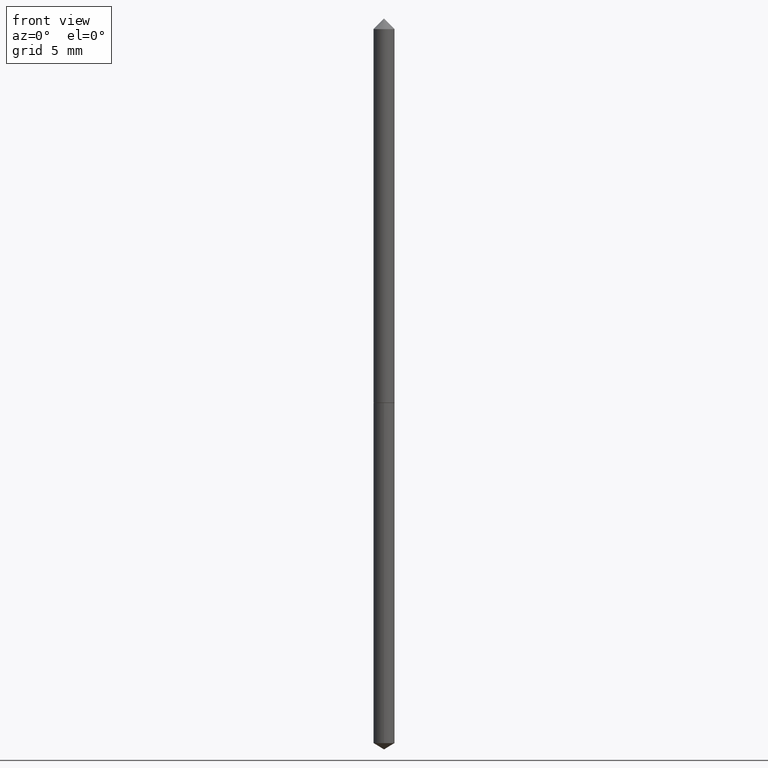
[diagram: clean part render]
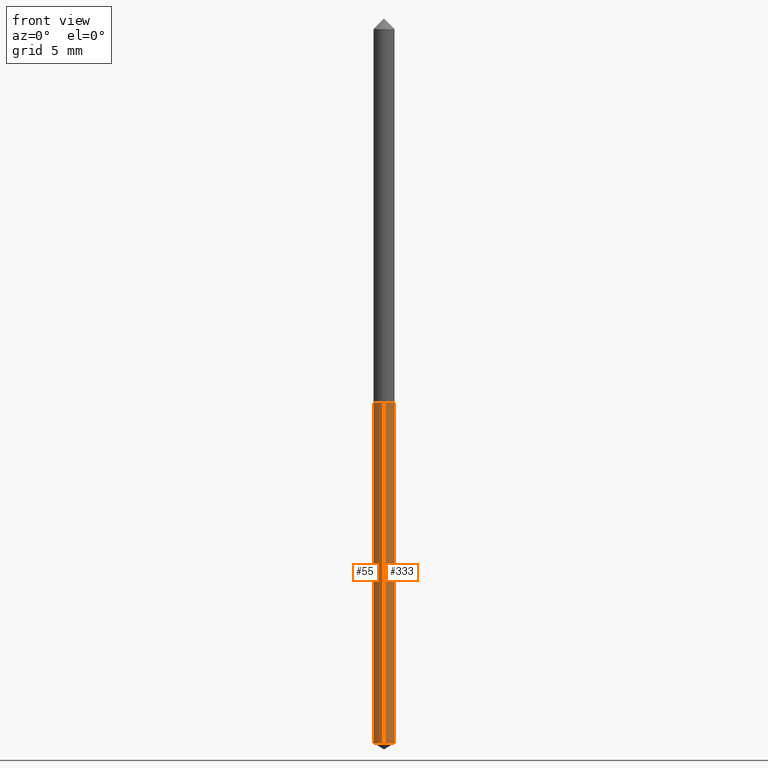
[diagram: same view with one multi-face feature highlighted, each face labeled with its STEP entity id]
A machine part, front view. The highlighted faces form ONE feature: a constant-radius fillet chain: 2 tangent blend faces with common blend radius 0.5461 mm. The faces share edges in the B-rep.
Their STEP definitions:
[1] entity #55 (Cylinder):
#3 = EDGE_CURVE ( 'NONE', #271, #77, #133, .T. ) ;
#4 = ORIENTED_EDGE ( 'NONE', *, *, #278, .T. ) ;
#15 = DIRECTION ( 'NONE',  ( -6.982962677686265922E-15, -1.000000000000000000, 0.000000000000000000 ) ) ;
#16 = AXIS2_PLACEMENT_3D ( 'NONE', #291, #183, #155 ) ;
#55 = ADVANCED_FACE ( 'NONE', ( #113 ), #293, .T. ) ;
#58 = VECTOR ( 'NONE', #275, 39.37007874015748143 ) ;
#64 = CARTESIAN_POINT ( 'NONE',  ( 3.636672660117026275E-29, -5.192029584836672026E-15, -1.487081496690907834 ) ) ;
#76 = CIRCLE ( 'NONE', #182, 0.02150000000000000175 ) ;
#77 = VERTEX_POINT ( 'NONE', #130 ) ;
#92 = DIRECTION ( 'NONE',  ( -2.445557048998981766E-29, 3.491354970111250407E-15, 1.000000000000000000 ) ) ;
#96 = LINE ( 'NONE', #322, #342 ) ;
#105 = EDGE_LOOP ( 'NONE', ( #197, #4, #338, #168 ) ) ;
#113 = FACE_OUTER_BOUND ( 'NONE', #105, .T. ) ;
#130 = CARTESIAN_POINT ( 'NONE',  ( -1.501336975702353539E-16, -0.02150000000000277037, -0.7930000000000000382 ) ) ;
#133 = CIRCLE ( 'NONE', #153, 0.02150000000000000175 ) ;
#153 = AXIS2_PLACEMENT_3D ( 'NONE', #364, #230, #220 ) ;
#155 = DIRECTION ( 'NONE',  ( -6.982962677686265922E-15, -1.000000000000000000, 6.353134868986658336E-15 ) ) ;
#160 = DIRECTION ( 'NONE',  ( -2.445557048998981486E-29, 3.491354970111250407E-15, 1.000000000000000000 ) ) ;
#168 = ORIENTED_EDGE ( 'NONE', *, *, #3, .F. ) ;
#181 = EDGE_CURVE ( 'NONE', #223, #77, #96, .T. ) ;
#182 = AXIS2_PLACEMENT_3D ( 'NONE', #64, #160, #15 ) ;
#183 = DIRECTION ( 'NONE',  ( -2.445557048998981486E-29, 3.491354970111250407E-15, 1.000000000000000000 ) ) ;
#194 = CARTESIAN_POINT ( 'NONE',  ( 1.527666881884409041E-16, 0.02149999999999722966, -0.7930000000000002602 ) ) ;
#197 = ORIENTED_EDGE ( 'NONE', *, *, #283, .F. ) ;
#206 = CARTESIAN_POINT ( 'NONE',  ( 1.527666881884579879E-16, 0.02149999999999722966, -0.7930000000000002602 ) ) ;
#216 = CARTESIAN_POINT ( 'NONE',  ( 1.527666881884579139E-16, 0.02149999999999481493, -1.487081496690907834 ) ) ;
#220 = DIRECTION ( 'NONE',  ( -6.982962677686265922E-15, -1.000000000000000000, 6.353134868986658336E-15 ) ) ;
#223 = VERTEX_POINT ( 'NONE', #323 ) ;
#230 = DIRECTION ( 'NONE',  ( -2.445557048998981486E-29, 3.491354970111250407E-15, 1.000000000000000000 ) ) ;
#245 = LINE ( 'NONE', #194, #58 ) ;
#271 = VERTEX_POINT ( 'NONE', #206 ) ;
#275 = DIRECTION ( 'NONE',  ( -2.445557048998981766E-29, 3.491354970111250407E-15, 1.000000000000000000 ) ) ;
#278 = EDGE_CURVE ( 'NONE', #312, #223, #76, .T. ) ;
#283 = EDGE_CURVE ( 'NONE', #312, #271, #245, .T. ) ;
#291 = CARTESIAN_POINT ( 'NONE',  ( 1.939256763304813756E-29, -2.768744701702615101E-15, -0.7930000000000001492 ) ) ;
#293 = CYLINDRICAL_SURFACE ( 'NONE', #16, 0.02150000000000000175 ) ;
#312 = VERTEX_POINT ( 'NONE', #216 ) ;
#322 = CARTESIAN_POINT ( 'NONE',  ( -1.501336975702353539E-16, -0.02150000000000277037, -0.7930000000000000382 ) ) ;
#323 = CARTESIAN_POINT ( 'NONE',  ( -1.501336975702183934E-16, -0.02150000000000519898, -1.487081496690907834 ) ) ;
#338 = ORIENTED_EDGE ( 'NONE', *, *, #181, .T. ) ;
#342 = VECTOR ( 'NONE', #92, 39.37007874015748143 ) ;
#364 = CARTESIAN_POINT ( 'NONE',  ( 1.939256763304813756E-29, -2.768744701702615101E-15, -0.7930000000000001492 ) ) ;
[2] entity #333 (Cylinder):
#6 = CIRCLE ( 'NONE', #63, 0.02150000000000000175 ) ;
#39 = DIRECTION ( 'NONE',  ( -2.445557048998981486E-29, 3.491354970111250407E-15, 1.000000000000000000 ) ) ;
#41 = DIRECTION ( 'NONE',  ( -6.982962677686265922E-15, -1.000000000000000000, 6.353134868986658336E-15 ) ) ;
#58 = VECTOR ( 'NONE', #275, 39.37007874015748143 ) ;
#63 = AXIS2_PLACEMENT_3D ( 'NONE', #188, #74, #41 ) ;
#65 = DIRECTION ( 'NONE',  ( -6.982962677686265922E-15, -1.000000000000000000, 0.000000000000000000 ) ) ;
#74 = DIRECTION ( 'NONE',  ( -2.445557048998981486E-29, 3.491354970111250407E-15, 1.000000000000000000 ) ) ;
#77 = VERTEX_POINT ( 'NONE', #130 ) ;
#79 = ORIENTED_EDGE ( 'NONE', *, *, #283, .T. ) ;
#92 = DIRECTION ( 'NONE',  ( -2.445557048998981766E-29, 3.491354970111250407E-15, 1.000000000000000000 ) ) ;
#96 = LINE ( 'NONE', #322, #342 ) ;
#108 = CIRCLE ( 'NONE', #129, 0.02150000000000000175 ) ;
#129 = AXIS2_PLACEMENT_3D ( 'NONE', #263, #157, #65 ) ;
#130 = CARTESIAN_POINT ( 'NONE',  ( -1.501336975702353539E-16, -0.02150000000000277037, -0.7930000000000000382 ) ) ;
#154 = AXIS2_PLACEMENT_3D ( 'NONE', #358, #39, #211 ) ;
#157 = DIRECTION ( 'NONE',  ( -2.445557048998981486E-29, 3.491354970111250407E-15, 1.000000000000000000 ) ) ;
#181 = EDGE_CURVE ( 'NONE', #223, #77, #96, .T. ) ;
#187 = EDGE_CURVE ( 'NONE', #223, #312, #108, .T. ) ;
#188 = CARTESIAN_POINT ( 'NONE',  ( 1.939256763304813756E-29, -2.768744701702615101E-15, -0.7930000000000001492 ) ) ;
#194 = CARTESIAN_POINT ( 'NONE',  ( 1.527666881884409041E-16, 0.02149999999999722966, -0.7930000000000002602 ) ) ;
#206 = CARTESIAN_POINT ( 'NONE',  ( 1.527666881884579879E-16, 0.02149999999999722966, -0.7930000000000002602 ) ) ;
#211 = DIRECTION ( 'NONE',  ( -6.982962677686265922E-15, -1.000000000000000000, 6.353134868986658336E-15 ) ) ;
#216 = CARTESIAN_POINT ( 'NONE',  ( 1.527666881884579139E-16, 0.02149999999999481493, -1.487081496690907834 ) ) ;
#223 = VERTEX_POINT ( 'NONE', #323 ) ;
#245 = LINE ( 'NONE', #194, #58 ) ;
#249 = FACE_OUTER_BOUND ( 'NONE', #254, .T. ) ;
#254 = EDGE_LOOP ( 'NONE', ( #259, #79, #363, #360 ) ) ;
#259 = ORIENTED_EDGE ( 'NONE', *, *, #187, .T. ) ;
#263 = CARTESIAN_POINT ( 'NONE',  ( 3.636672660117026275E-29, -5.192029584836672026E-15, -1.487081496690907834 ) ) ;
#270 = CYLINDRICAL_SURFACE ( 'NONE', #154, 0.02150000000000000175 ) ;
#271 = VERTEX_POINT ( 'NONE', #206 ) ;
#275 = DIRECTION ( 'NONE',  ( -2.445557048998981766E-29, 3.491354970111250407E-15, 1.000000000000000000 ) ) ;
#283 = EDGE_CURVE ( 'NONE', #312, #271, #245, .T. ) ;
#312 = VERTEX_POINT ( 'NONE', #216 ) ;
#322 = CARTESIAN_POINT ( 'NONE',  ( -1.501336975702353539E-16, -0.02150000000000277037, -0.7930000000000000382 ) ) ;
#323 = CARTESIAN_POINT ( 'NONE',  ( -1.501336975702183934E-16, -0.02150000000000519898, -1.487081496690907834 ) ) ;
#327 = EDGE_CURVE ( 'NONE', #77, #271, #6, .T. ) ;
#333 = ADVANCED_FACE ( 'NONE', ( #249 ), #270, .T. ) ;
#342 = VECTOR ( 'NONE', #92, 39.37007874015748143 ) ;
#358 = CARTESIAN_POINT ( 'NONE',  ( 1.939256763304813756E-29, -2.768744701702615101E-15, -0.7930000000000001492 ) ) ;
#360 = ORIENTED_EDGE ( 'NONE', *, *, #181, .F. ) ;
#363 = ORIENTED_EDGE ( 'NONE', *, *, #327, .F. ) ;